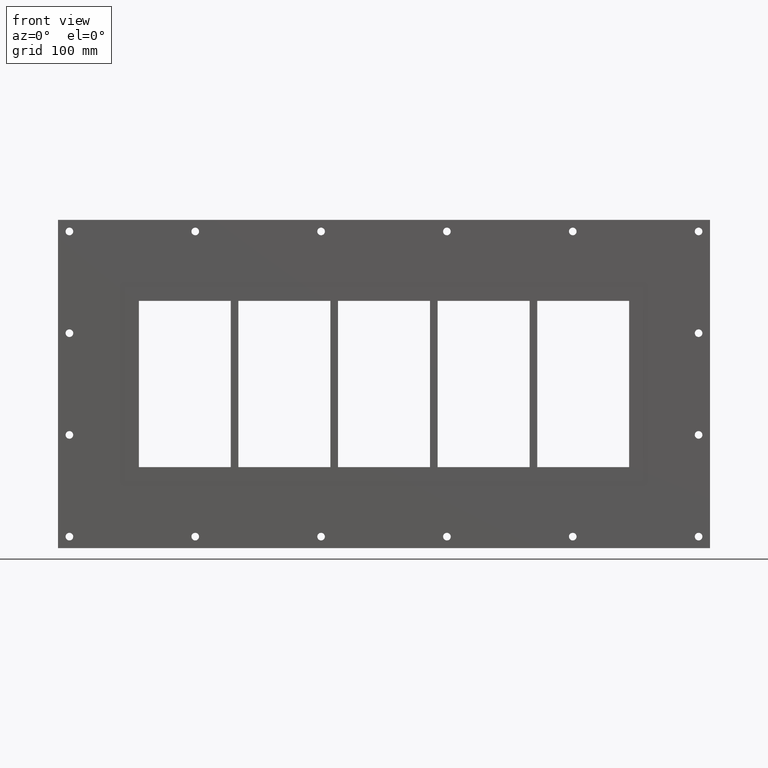
[diagram: clean part render]
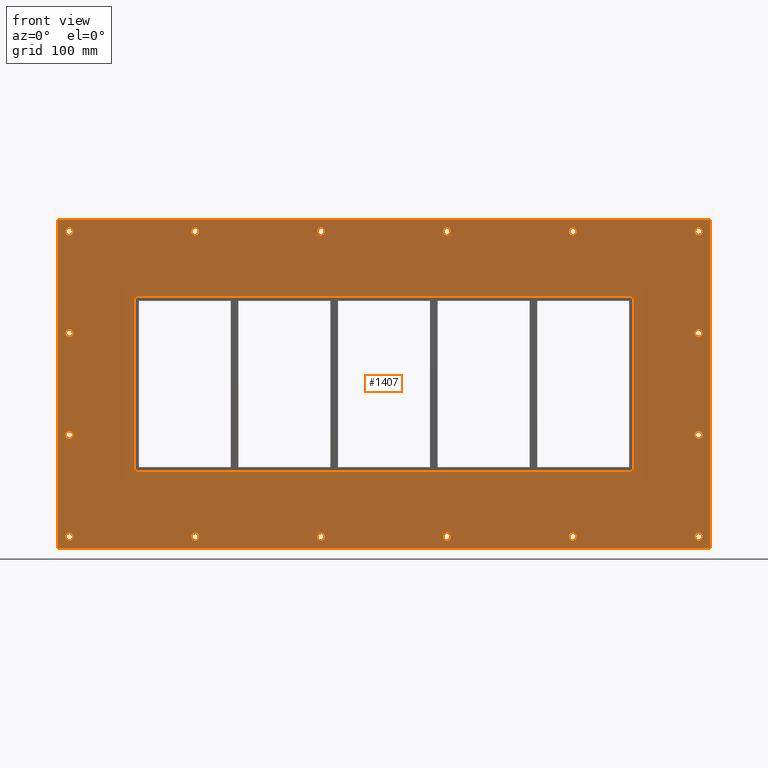
[diagram: same view with one face highlighted and labeled with its STEP entity id]
A machine part, front view. The second image highlights one B-rep face of the part: STEP entity #1407.
In plain terms, the highlighted planar face has unit normal (0, 1, 0).
Its self-contained STEP definition (entity closure, byte-faithful):
#84=CARTESIAN_POINT('',(-407.25000000000011,0.0,-199.99999999999994));
#85=VERTEX_POINT('',#84);
#86=CARTESIAN_POINT('',(-412.25000000000011,0.0,-199.99999999999994));
#87=DIRECTION('',(0.0,1.0,0.0));
#88=DIRECTION('',(1.0,0.0,0.0));
#89=AXIS2_PLACEMENT_3D('',#86,#87,#88);
#90=CIRCLE('',#89,5.0);
#91=EDGE_CURVE('',#85,#85,#90,.T.);
#112=CARTESIAN_POINT('',(417.25000000000011,0.0,-66.699999999999875));
#113=VERTEX_POINT('',#112);
#114=CARTESIAN_POINT('',(412.25000000000011,0.0,-66.699999999999875));
#115=DIRECTION('',(0.0,1.0,0.0));
#116=DIRECTION('',(1.0,0.0,0.0));
#117=AXIS2_PLACEMENT_3D('',#114,#115,#116);
#118=CIRCLE('',#117,5.0);
#119=EDGE_CURVE('',#113,#113,#118,.T.);
#140=CARTESIAN_POINT('',(-407.25000000000011,0.0,-66.699999999999875));
#141=VERTEX_POINT('',#140);
#142=CARTESIAN_POINT('',(-412.25000000000011,0.0,-66.699999999999875));
#143=DIRECTION('',(0.0,1.0,0.0));
#144=DIRECTION('',(1.0,0.0,0.0));
#145=AXIS2_PLACEMENT_3D('',#142,#143,#144);
#146=CIRCLE('',#145,5.0);
#147=EDGE_CURVE('',#141,#141,#146,.T.);
#168=CARTESIAN_POINT('',(417.25000000000011,0.0,66.600000000000136));
#169=VERTEX_POINT('',#168);
#170=CARTESIAN_POINT('',(412.25000000000011,0.0,66.600000000000136));
#171=DIRECTION('',(0.0,1.0,0.0));
#172=DIRECTION('',(1.0,0.0,0.0));
#173=AXIS2_PLACEMENT_3D('',#170,#171,#172);
#174=CIRCLE('',#173,5.0);
#175=EDGE_CURVE('',#169,#169,#174,.T.);
#196=CARTESIAN_POINT('',(-407.25000000000011,0.0,66.600000000000136));
#197=VERTEX_POINT('',#196);
#198=CARTESIAN_POINT('',(-412.25000000000011,0.0,66.600000000000136));
#199=DIRECTION('',(0.0,1.0,0.0));
#200=DIRECTION('',(1.0,0.0,0.0));
#201=AXIS2_PLACEMENT_3D('',#198,#199,#200);
#202=CIRCLE('',#201,5.0);
#203=EDGE_CURVE('',#197,#197,#202,.T.);
#224=CARTESIAN_POINT('',(-242.34999999999999,0.0,199.90000000000015));
#225=VERTEX_POINT('',#224);
#226=CARTESIAN_POINT('',(-247.34999999999999,0.0,199.90000000000015));
#227=DIRECTION('',(0.0,1.0,0.0));
#228=DIRECTION('',(1.0,0.0,0.0));
#229=AXIS2_PLACEMENT_3D('',#226,#227,#228);
#230=CIRCLE('',#229,5.0);
#231=EDGE_CURVE('',#225,#225,#230,.T.);
#252=CARTESIAN_POINT('',(-242.34999999999999,0.0,-199.99999999999994));
#253=VERTEX_POINT('',#252);
#254=CARTESIAN_POINT('',(-247.34999999999999,0.0,-199.99999999999994));
#255=DIRECTION('',(0.0,1.0,0.0));
#256=DIRECTION('',(1.0,0.0,0.0));
#257=AXIS2_PLACEMENT_3D('',#254,#255,#256);
#258=CIRCLE('',#257,5.0);
#259=EDGE_CURVE('',#253,#253,#258,.T.);
#280=CARTESIAN_POINT('',(-77.449999999999974,0.0,199.90000000000015));
#281=VERTEX_POINT('',#280);
#282=CARTESIAN_POINT('',(-82.449999999999974,0.0,199.90000000000015));
#283=DIRECTION('',(0.0,1.0,0.0));
#284=DIRECTION('',(1.0,0.0,0.0));
#285=AXIS2_PLACEMENT_3D('',#282,#283,#284);
#286=CIRCLE('',#285,5.0);
#287=EDGE_CURVE('',#281,#281,#286,.T.);
#308=CARTESIAN_POINT('',(-77.449999999999974,0.0,-199.99999999999994));
#309=VERTEX_POINT('',#308);
#310=CARTESIAN_POINT('',(-82.449999999999974,0.0,-199.99999999999994));
#311=DIRECTION('',(0.0,1.0,0.0));
#312=DIRECTION('',(1.0,0.0,0.0));
#313=AXIS2_PLACEMENT_3D('',#310,#311,#312);
#314=CIRCLE('',#313,5.0);
#315=EDGE_CURVE('',#309,#309,#314,.T.);
#336=CARTESIAN_POINT('',(87.450000000000045,0.0,199.90000000000015));
#337=VERTEX_POINT('',#336);
#338=CARTESIAN_POINT('',(82.450000000000045,0.0,199.90000000000015));
#339=DIRECTION('',(0.0,1.0,0.0));
#340=DIRECTION('',(1.0,0.0,0.0));
#341=AXIS2_PLACEMENT_3D('',#338,#339,#340);
#342=CIRCLE('',#341,5.0);
#343=EDGE_CURVE('',#337,#337,#342,.T.);
#364=CARTESIAN_POINT('',(87.450000000000045,0.0,-199.99999999999994));
#365=VERTEX_POINT('',#364);
#366=CARTESIAN_POINT('',(82.450000000000045,0.0,-199.99999999999994));
#367=DIRECTION('',(0.0,1.0,0.0));
#368=DIRECTION('',(1.0,0.0,0.0));
#369=AXIS2_PLACEMENT_3D('',#366,#367,#368);
#370=CIRCLE('',#369,5.0);
#371=EDGE_CURVE('',#365,#365,#370,.T.);
#392=CARTESIAN_POINT('',(252.35000000000008,0.0,199.90000000000015));
#393=VERTEX_POINT('',#392);
#394=CARTESIAN_POINT('',(247.35000000000008,0.0,199.90000000000015));
#395=DIRECTION('',(0.0,1.0,0.0));
#396=DIRECTION('',(1.0,0.0,0.0));
#397=AXIS2_PLACEMENT_3D('',#394,#395,#396);
#398=CIRCLE('',#397,5.0);
#399=EDGE_CURVE('',#393,#393,#398,.T.);
#420=CARTESIAN_POINT('',(252.35000000000008,0.0,-199.99999999999994));
#421=VERTEX_POINT('',#420);
#422=CARTESIAN_POINT('',(247.35000000000008,0.0,-199.99999999999994));
#423=DIRECTION('',(0.0,1.0,0.0));
#424=DIRECTION('',(1.0,0.0,0.0));
#425=AXIS2_PLACEMENT_3D('',#422,#423,#424);
#426=CIRCLE('',#425,5.0);
#427=EDGE_CURVE('',#421,#421,#426,.T.);
#448=CARTESIAN_POINT('',(417.25000000000011,0.0,-199.99999999999994));
#449=VERTEX_POINT('',#448);
#450=CARTESIAN_POINT('',(412.25000000000011,0.0,-199.99999999999994));
#451=DIRECTION('',(0.0,1.0,0.0));
#452=DIRECTION('',(1.0,0.0,0.0));
#453=AXIS2_PLACEMENT_3D('',#450,#451,#452);
#454=CIRCLE('',#453,5.0);
#455=EDGE_CURVE('',#449,#449,#454,.T.);
#476=CARTESIAN_POINT('',(-407.25000000000011,0.0,199.90000000000015));
#477=VERTEX_POINT('',#476);
#478=CARTESIAN_POINT('',(-412.25000000000011,0.0,199.90000000000015));
#479=DIRECTION('',(0.0,1.0,0.0));
#480=DIRECTION('',(1.0,0.0,0.0));
#481=AXIS2_PLACEMENT_3D('',#478,#479,#480);
#482=CIRCLE('',#481,5.0);
#483=EDGE_CURVE('',#477,#477,#482,.T.);
#504=CARTESIAN_POINT('',(417.25000000000011,0.0,199.90000000000015));
#505=VERTEX_POINT('',#504);
#506=CARTESIAN_POINT('',(412.25000000000011,0.0,199.90000000000015));
#507=DIRECTION('',(0.0,1.0,0.0));
#508=DIRECTION('',(1.0,0.0,0.0));
#509=AXIS2_PLACEMENT_3D('',#506,#507,#508);
#510=CIRCLE('',#509,5.0);
#511=EDGE_CURVE('',#505,#505,#510,.T.);
#1250=CARTESIAN_POINT('',(-3.982801E-014,0.0,1.922255E-014));
#1251=DIRECTION('',(0.0,1.0,0.0));
#1252=DIRECTION('',(0.0,0.0,1.0));
#1253=AXIS2_PLACEMENT_3D('',#1250,#1251,#1252);
#1254=PLANE('',#1253);
#1255=CARTESIAN_POINT('',(-427.25000000000011,0.0,215.0));
#1256=VERTEX_POINT('',#1255);
#1257=CARTESIAN_POINT('',(427.25,0.0,215.0));
#1258=VERTEX_POINT('',#1257);
#1259=CARTESIAN_POINT('',(-427.25000000000011,0.0,215.0));
#1260=DIRECTION('',(1.0,0.0,0.0));
#1261=VECTOR('',#1260,854.50000000000023);
#1262=LINE('',#1259,#1261);
#1263=EDGE_CURVE('',#1256,#1258,#1262,.T.);
#1264=ORIENTED_EDGE('',*,*,#1263,.F.);
#1265=CARTESIAN_POINT('',(-427.25000000000011,0.0,-214.99999999999997));
#1266=VERTEX_POINT('',#1265);
#1267=CARTESIAN_POINT('',(-427.25000000000011,0.0,-214.99999999999997));
#1268=DIRECTION('',(0.0,0.0,1.0));
#1269=VECTOR('',#1268,430.0);
#1270=LINE('',#1267,#1269);
#1271=EDGE_CURVE('',#1266,#1256,#1270,.T.);
#1272=ORIENTED_EDGE('',*,*,#1271,.F.);
#1273=CARTESIAN_POINT('',(427.25,0.0,-214.99999999999997));
#1274=VERTEX_POINT('',#1273);
#1275=CARTESIAN_POINT('',(427.25,0.0,-214.99999999999997));
#1276=DIRECTION('',(-1.0,0.0,0.0));
#1277=VECTOR('',#1276,854.50000000000023);
#1278=LINE('',#1275,#1277);
#1279=EDGE_CURVE('',#1274,#1266,#1278,.T.);
#1280=ORIENTED_EDGE('',*,*,#1279,.F.);
#1281=CARTESIAN_POINT('',(427.25,0.0,215.0));
#1282=DIRECTION('',(0.0,0.0,-1.0));
#1283=VECTOR('',#1282,430.0);
#1284=LINE('',#1281,#1283);
#1285=EDGE_CURVE('',#1258,#1274,#1284,.T.);
#1286=ORIENTED_EDGE('',*,*,#1285,.F.);
#1287=EDGE_LOOP('',(#1264,#1272,#1280,#1286));
#1288=FACE_OUTER_BOUND('',#1287,.T.);
#1289=ORIENTED_EDGE('',*,*,#91,.T.);
#1290=EDGE_LOOP('',(#1289));
#1291=FACE_BOUND('',#1290,.T.);
#1292=ORIENTED_EDGE('',*,*,#119,.T.);
#1293=EDGE_LOOP('',(#1292));
#1294=FACE_BOUND('',#1293,.T.);
#1295=ORIENTED_EDGE('',*,*,#147,.T.);
#1296=EDGE_LOOP('',(#1295));
#1297=FACE_BOUND('',#1296,.T.);
#1298=ORIENTED_EDGE('',*,*,#175,.T.);
#1299=EDGE_LOOP('',(#1298));
#1300=FACE_BOUND('',#1299,.T.);
#1301=ORIENTED_EDGE('',*,*,#203,.T.);
#1302=EDGE_LOOP('',(#1301));
#1303=FACE_BOUND('',#1302,.T.);
#1304=ORIENTED_EDGE('',*,*,#231,.T.);
#1305=EDGE_LOOP('',(#1304));
#1306=FACE_BOUND('',#1305,.T.);
#1307=ORIENTED_EDGE('',*,*,#259,.T.);
#1308=EDGE_LOOP('',(#1307));
#1309=FACE_BOUND('',#1308,.T.);
#1310=ORIENTED_EDGE('',*,*,#287,.T.);
#1311=EDGE_LOOP('',(#1310));
#1312=FACE_BOUND('',#1311,.T.);
#1313=ORIENTED_EDGE('',*,*,#315,.T.);
#1314=EDGE_LOOP('',(#1313));
#1315=FACE_BOUND('',#1314,.T.);
#1316=ORIENTED_EDGE('',*,*,#343,.T.);
#1317=EDGE_LOOP('',(#1316));
#1318=FACE_BOUND('',#1317,.T.);
#1319=ORIENTED_EDGE('',*,*,#371,.T.);
#1320=EDGE_LOOP('',(#1319));
#1321=FACE_BOUND('',#1320,.T.);
#1322=ORIENTED_EDGE('',*,*,#399,.T.);
#1323=EDGE_LOOP('',(#1322));
#1324=FACE_BOUND('',#1323,.T.);
#1325=ORIENTED_EDGE('',*,*,#427,.T.);
#1326=EDGE_LOOP('',(#1325));
#1327=FACE_BOUND('',#1326,.T.);
#1328=ORIENTED_EDGE('',*,*,#455,.T.);
#1329=EDGE_LOOP('',(#1328));
#1330=FACE_BOUND('',#1329,.T.);
#1331=ORIENTED_EDGE('',*,*,#483,.T.);
#1332=EDGE_LOOP('',(#1331));
#1333=FACE_BOUND('',#1332,.T.);
#1334=ORIENTED_EDGE('',*,*,#511,.T.);
#1335=EDGE_LOOP('',(#1334));
#1336=FACE_BOUND('',#1335,.T.);
#1337=CARTESIAN_POINT('',(-327.25,0.0,-108.99999999999999));
#1338=VERTEX_POINT('',#1337);
#1339=CARTESIAN_POINT('',(-321.25,0.0,-115.0));
#1340=VERTEX_POINT('',#1339);
#1341=CARTESIAN_POINT('',(-321.25,0.0,-108.99999999999999));
#1342=DIRECTION('',(0.0,-1.0,0.0));
#1343=DIRECTION('',(-0.707106781186543,0.0,-0.707106781186552));
#1344=AXIS2_PLACEMENT_3D('',#1341,#1342,#1343);
#1345=CIRCLE('',#1344,6.000000000000001);
#1346=EDGE_CURVE('',#1338,#1340,#1345,.T.);
#1347=ORIENTED_EDGE('',*,*,#1346,.F.);
#1348=CARTESIAN_POINT('',(-327.25,0.0,108.99999999999999));
#1349=VERTEX_POINT('',#1348);
#1350=CARTESIAN_POINT('',(-327.25,0.0,109.0));
#1351=DIRECTION('',(0.0,0.0,-1.0));
#1352=VECTOR('',#1351,218.0);
#1353=LINE('',#1350,#1352);
#1354=EDGE_CURVE('',#1349,#1338,#1353,.T.);
#1355=ORIENTED_EDGE('',*,*,#1354,.F.);
#1356=CARTESIAN_POINT('',(-321.25,0.0,115.0));
#1357=VERTEX_POINT('',#1356);
#1358=CARTESIAN_POINT('',(-321.25,0.0,108.99999999999999));
#1359=DIRECTION('',(0.0,-1.0,0.0));
#1360=DIRECTION('',(-0.707106781186543,0.0,0.707106781186552));
#1361=AXIS2_PLACEMENT_3D('',#1358,#1359,#1360);
#1362=CIRCLE('',#1361,6.000000000000001);
#1363=EDGE_CURVE('',#1357,#1349,#1362,.T.);
#1364=ORIENTED_EDGE('',*,*,#1363,.F.);
#1365=CARTESIAN_POINT('',(321.25,0.0,115.0));
#1366=VERTEX_POINT('',#1365);
#1367=CARTESIAN_POINT('',(321.25,0.0,115.0));
#1368=DIRECTION('',(-1.0,0.0,0.0));
#1369=VECTOR('',#1368,642.5);
#1370=LINE('',#1367,#1369);
#1371=EDGE_CURVE('',#1366,#1357,#1370,.T.);
#1372=ORIENTED_EDGE('',*,*,#1371,.F.);
#1373=CARTESIAN_POINT('',(327.25,0.0,109.0));
#1374=VERTEX_POINT('',#1373);
#1375=CARTESIAN_POINT('',(321.25,0.0,109.0));
#1376=DIRECTION('',(0.0,-1.0,0.0));
#1377=DIRECTION('',(0.707106781186545,0.0,0.70710678118655));
#1378=AXIS2_PLACEMENT_3D('',#1375,#1376,#1377);
#1379=CIRCLE('',#1378,6.000000000000001);
#1380=EDGE_CURVE('',#1374,#1366,#1379,.T.);
#1381=ORIENTED_EDGE('',*,*,#1380,.F.);
#1382=CARTESIAN_POINT('',(327.25,0.0,-108.99999999999999));
#1383=VERTEX_POINT('',#1382);
#1384=CARTESIAN_POINT('',(327.25,0.0,-109.0));
#1385=DIRECTION('',(0.0,0.0,1.0));
#1386=VECTOR('',#1385,218.0);
#1387=LINE('',#1384,#1386);
#1388=EDGE_CURVE('',#1383,#1374,#1387,.T.);
#1389=ORIENTED_EDGE('',*,*,#1388,.F.);
#1390=CARTESIAN_POINT('',(321.25,0.0,-115.0));
#1391=VERTEX_POINT('',#1390);
#1392=CARTESIAN_POINT('',(321.25,0.0,-108.99999999999999));
#1393=DIRECTION('',(0.0,-1.0,0.0));
#1394=DIRECTION('',(0.707106781186543,0.0,-0.707106781186552));
#1395=AXIS2_PLACEMENT_3D('',#1392,#1393,#1394);
#1396=CIRCLE('',#1395,6.000000000000001);
#1397=EDGE_CURVE('',#1391,#1383,#1396,.T.);
#1398=ORIENTED_EDGE('',*,*,#1397,.F.);
#1399=CARTESIAN_POINT('',(-321.25,0.0,-115.0));
#1400=DIRECTION('',(1.0,0.0,0.0));
#1401=VECTOR('',#1400,642.5);
#1402=LINE('',#1399,#1401);
#1403=EDGE_CURVE('',#1340,#1391,#1402,.T.);
#1404=ORIENTED_EDGE('',*,*,#1403,.F.);
#1405=EDGE_LOOP('',(#1347,#1355,#1364,#1372,#1381,#1389,#1398,#1404));
#1406=FACE_BOUND('',#1405,.T.);
#1407=ADVANCED_FACE('',(#1288,#1291,#1294,#1297,#1300,#1303,#1306,#1309,#1312,#1315,#1318,#1321,#1324,#1327,#1330,#1333,#1336,#1406),#1254,.F.);